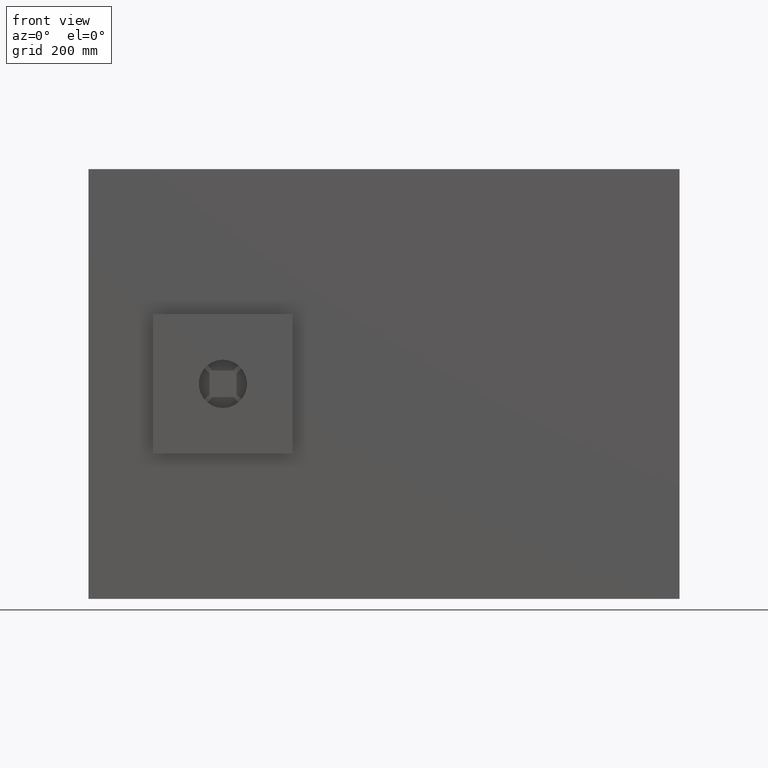
[diagram: clean part render]
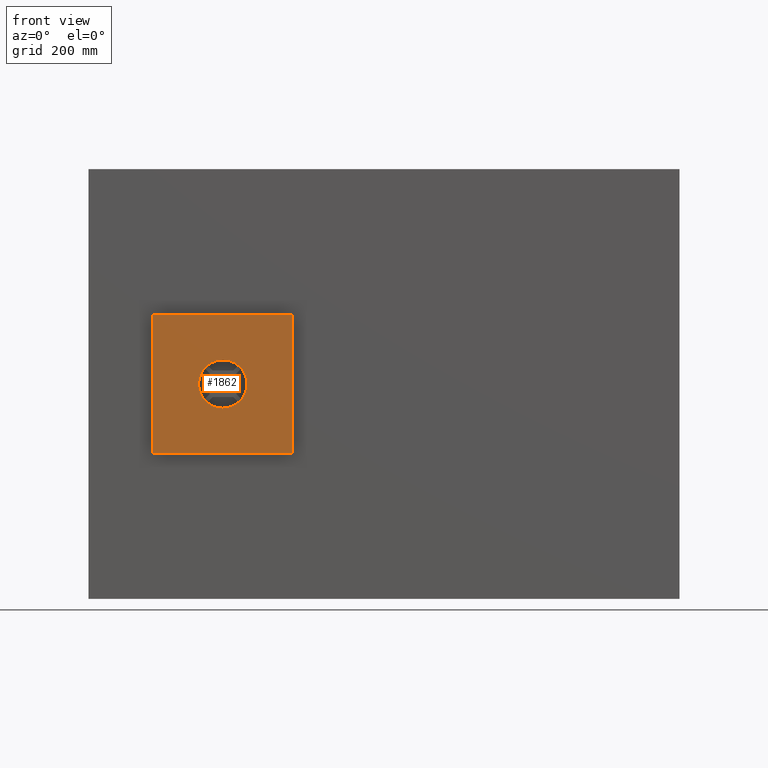
[diagram: same view with one face highlighted and labeled with its STEP entity id]
A machine part, front view. The second image highlights one B-rep face of the part: STEP entity #1862.
In plain terms, the highlighted planar face has unit normal (0, -1, 0).
Its self-contained STEP definition (entity closure, byte-faithful):
#13 = CIRCLE ( 'NONE', #1335, 44.99999999999996400 ) ;
#44 = CARTESIAN_POINT ( 'NONE',  ( -170.0000000000002300, -26.00000000000000000, -129.9999999999999100 ) ) ;
#180 = FACE_BOUND ( 'NONE', #1531, .T. ) ;
#264 = FACE_OUTER_BOUND ( 'NONE', #3127, .T. ) ;
#492 = VECTOR ( 'NONE', #807, 1000.000000000000000 ) ;
#552 = VERTEX_POINT ( 'NONE', #2830 ) ;
#587 = VECTOR ( 'NONE', #2168, 1000.000000000000000 ) ;
#598 = LINE ( 'NONE', #2593, #587 ) ;
#693 = VECTOR ( 'NONE', #2177, 1000.000000000000000 ) ;
#702 = LINE ( 'NONE', #2183, #693 ) ;
#807 = DIRECTION ( 'NONE',  ( 2.135044278125300800E-016, -0.0000000000000000000, -1.000000000000000000 ) ) ;
#963 = CARTESIAN_POINT ( 'NONE',  ( -170.0000000000002600, -26.00000000000000000, 130.0000000000000900 ) ) ;
#1045 = CARTESIAN_POINT ( 'NONE',  ( -430.0000000000002800, -26.00000000000000000, 130.0000000000000900 ) ) ;
#1195 = EDGE_CURVE ( 'NONE', #1693, #1736, #702, .T. ) ;
#1287 = EDGE_CURVE ( 'NONE', #1736, #2251, #598, .T. ) ;
#1297 = CARTESIAN_POINT ( 'NONE',  ( -430.0000000000002800, -26.00000000000000000, 130.0000000000000900 ) ) ;
#1335 = AXIS2_PLACEMENT_3D ( 'NONE', #1735, #2246, #1882 ) ;
#1527 = VERTEX_POINT ( 'NONE', #1297 ) ;
#1530 = VECTOR ( 'NONE', #1936, 1000.000000000000000 ) ;
#1531 = EDGE_LOOP ( 'NONE', ( #1947, #1931 ) ) ;
#1563 = LINE ( 'NONE', #1045, #1530 ) ;
#1580 = VERTEX_POINT ( 'NONE', #1926 ) ;
#1643 = LINE ( 'NONE', #2634, #492 ) ;
#1693 = VERTEX_POINT ( 'NONE', #2670 ) ;
#1723 = DIRECTION ( 'NONE',  ( 0.0000000000000000000, -0.0000000000000000000, -1.000000000000000000 ) ) ;
#1736 = VERTEX_POINT ( 'NONE', #44 ) ;
#1735 = CARTESIAN_POINT ( 'NONE',  ( -300.0000000000002800, -26.00000000000000000, 1.138828968255705800E-013 ) ) ;
#1775 = DIRECTION ( 'NONE',  ( 0.0000000000000000000, -1.000000000000000000, 0.0000000000000000000 ) ) ;
#1862 = ADVANCED_FACE ( 'NONE', ( #180, #264 ), #2298, .T. ) ;
#1882 = DIRECTION ( 'NONE',  ( 0.0000000000000000000, 0.0000000000000000000, -1.000000000000000000 ) ) ;
#1887 = ORIENTED_EDGE ( 'NONE', *, *, #1195, .T. ) ;
#1920 = ORIENTED_EDGE ( 'NONE', *, *, #3007, .T. ) ;
#1923 = ORIENTED_EDGE ( 'NONE', *, *, #2483, .T. ) ;
#1926 = CARTESIAN_POINT ( 'NONE',  ( -300.0000000000002800, -26.00000000000000000, -44.99999999999985100 ) ) ;
#1931 = ORIENTED_EDGE ( 'NONE', *, *, #2854, .T. ) ;
#1936 = DIRECTION ( 'NONE',  ( -1.000000000000000000, -0.0000000000000000000, -0.0000000000000000000 ) ) ;
#1937 = ORIENTED_EDGE ( 'NONE', *, *, #1287, .T. ) ;
#1947 = ORIENTED_EDGE ( 'NONE', *, *, #3198, .T. ) ;
#2168 = DIRECTION ( 'NONE',  ( -1.067522139062650400E-016, 0.0000000000000000000, 1.000000000000000000 ) ) ;
#2177 = DIRECTION ( 'NONE',  ( 1.000000000000000000, 0.0000000000000000000, 0.0000000000000000000 ) ) ;
#2183 = CARTESIAN_POINT ( 'NONE',  ( -430.0000000000002300, -26.00000000000000000, -129.9999999999999100 ) ) ;
#2246 = DIRECTION ( 'NONE',  ( -0.0000000000000000000, 1.000000000000000000, -0.0000000000000000000 ) ) ;
#2251 = VERTEX_POINT ( 'NONE', #963 ) ;
#2298 = PLANE ( 'NONE',  #2642 ) ;
#2351 = CARTESIAN_POINT ( 'NONE',  ( -300.0000000000002800, -26.00000000000000000, 1.138828968255705800E-013 ) ) ;
#2483 = EDGE_CURVE ( 'NONE', #1527, #1693, #1643, .T. ) ;
#2498 = DIRECTION ( 'NONE',  ( -0.0000000000000000000, 1.000000000000000000, -0.0000000000000000000 ) ) ;
#2545 = CARTESIAN_POINT ( 'NONE',  ( 0.0000000000000000000, -26.00000000000000000, 0.0000000000000000000 ) ) ;
#2593 = CARTESIAN_POINT ( 'NONE',  ( -170.0000000000002600, -26.00000000000000000, 130.0000000000000900 ) ) ;
#2634 = CARTESIAN_POINT ( 'NONE',  ( -430.0000000000002800, -26.00000000000000000, 130.0000000000000900 ) ) ;
#2642 = AXIS2_PLACEMENT_3D ( 'NONE', #2545, #1775, #1723 ) ;
#2670 = CARTESIAN_POINT ( 'NONE',  ( -430.0000000000002300, -26.00000000000000000, -129.9999999999999100 ) ) ;
#2742 = DIRECTION ( 'NONE',  ( 0.0000000000000000000, 0.0000000000000000000, -1.000000000000000000 ) ) ;
#2763 = AXIS2_PLACEMENT_3D ( 'NONE', #2351, #2498, #2742 ) ;
#2830 = CARTESIAN_POINT ( 'NONE',  ( -300.0000000000002800, -26.00000000000000000, 45.00000000000007800 ) ) ;
#2854 = EDGE_CURVE ( 'NONE', #1580, #552, #13, .T. ) ;
#2971 = CIRCLE ( 'NONE', #2763, 44.99999999999996400 ) ;
#3007 = EDGE_CURVE ( 'NONE', #2251, #1527, #1563, .T. ) ;
#3127 = EDGE_LOOP ( 'NONE', ( #1937, #1920, #1923, #1887 ) ) ;
#3198 = EDGE_CURVE ( 'NONE', #552, #1580, #2971, .T. ) ;